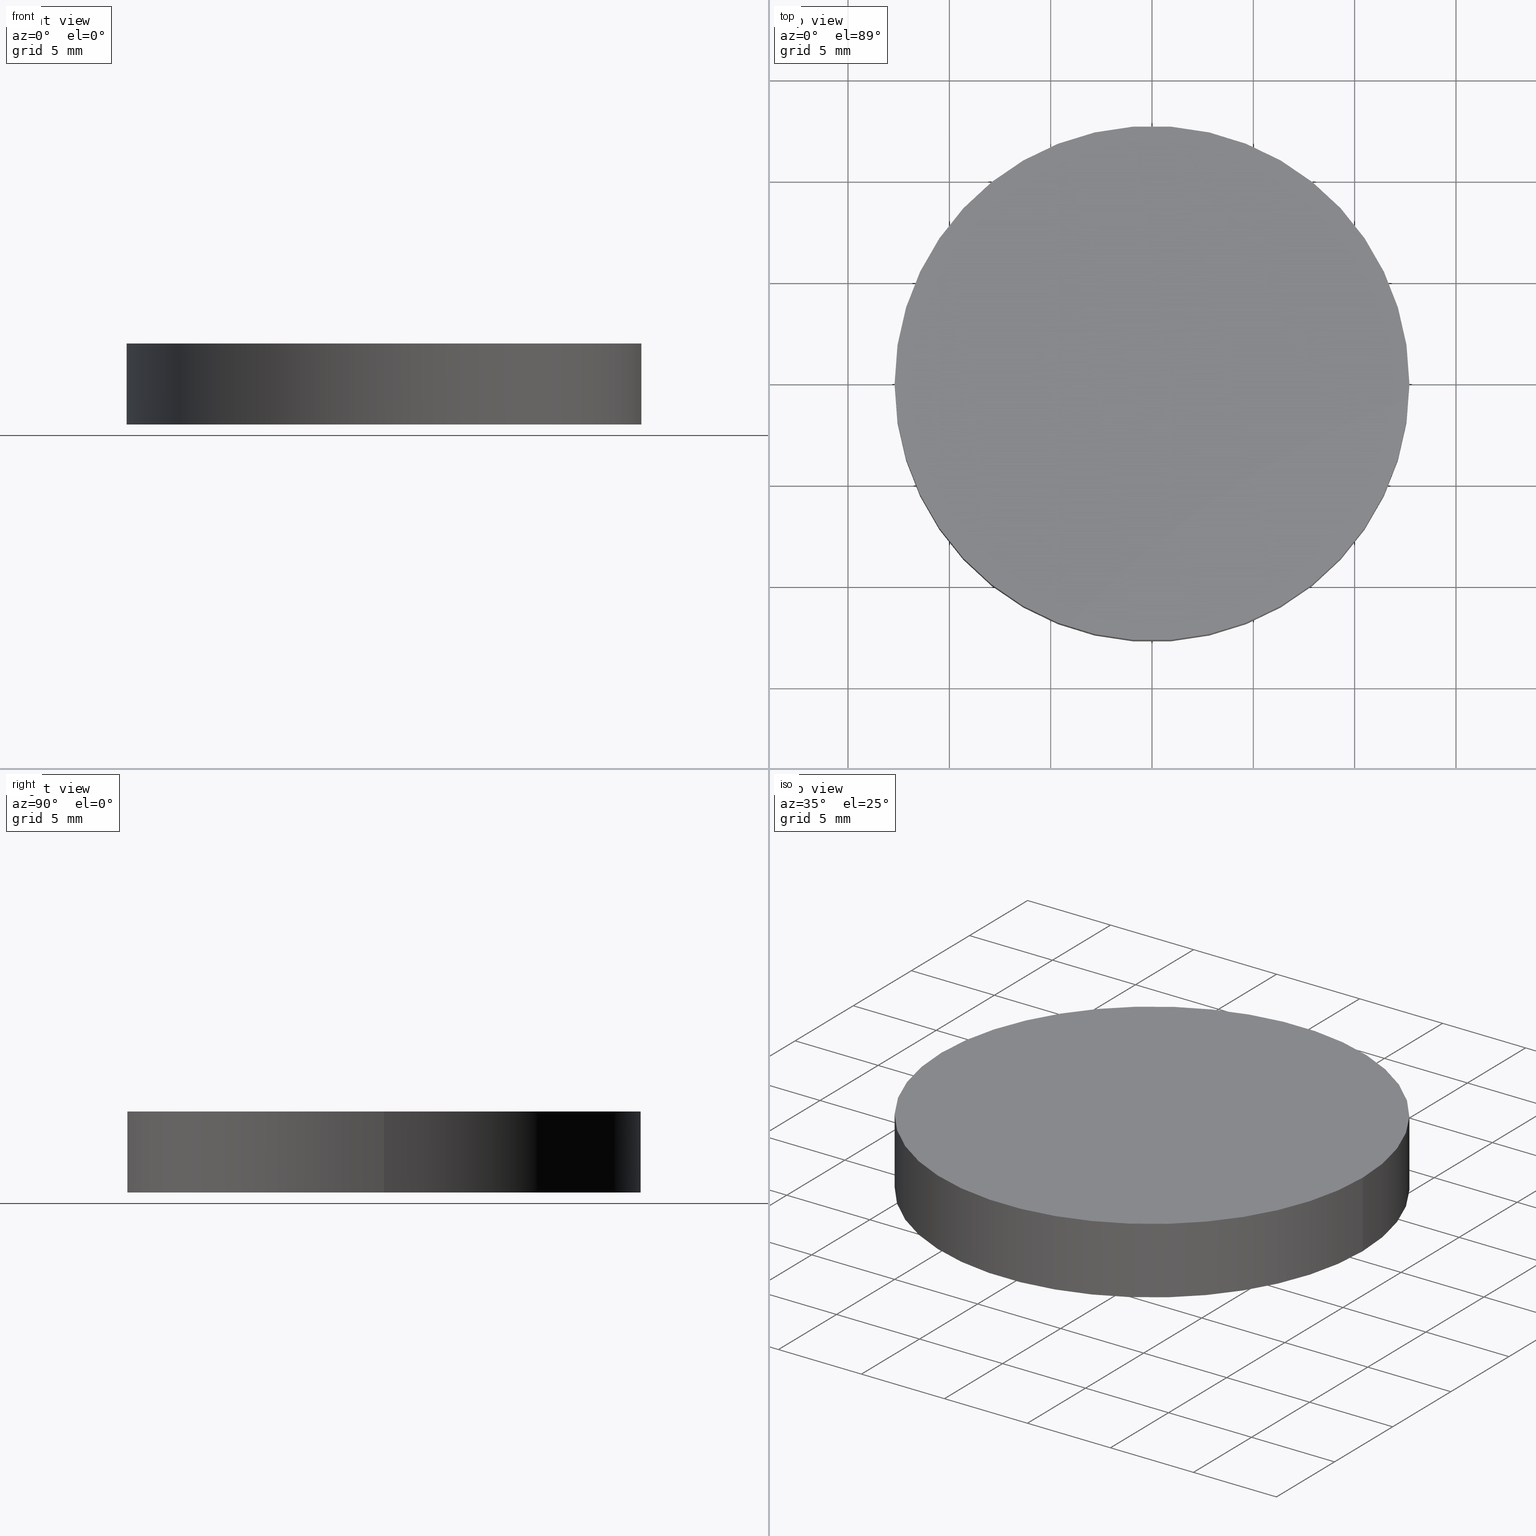
[diagram: canonical four-view strip — front | top / right | iso, engineering-drawing reading convention]
A machine part, canonical four-view strip (front | top / right | iso — engineering-drawing reading convention). The complete STEP part file that produces these views, byte-faithful:
ISO-10303-21;
HEADER;
FILE_DESCRIPTION (( 'STEP AP214' ),
    '1' );
FILE_NAME ('180006.STEP',
    '2019-07-09T05:37:44',
    ( 'user' ),
    ( '΢���й�' ),
    'SwSTEP 2.0',
    'SolidWorks 2016',
    '' );
FILE_SCHEMA (( 'AUTOMOTIVE_DESIGN' ));
ENDSEC;

DATA;
#1 = EDGE_CURVE ( 'NONE', #91, #73, #121, .T. ) ;
#2 = COLOUR_RGB ( '',1.000000000000000000, 1.000000000000000000, 1.000000000000000000 ) ;
#3 = PRESENTATION_LAYER_ASSIGNMENT (  '', '', ( #28 ) ) ;
#4 = VERTEX_POINT ( 'NONE', #97 ) ;
#5 = MECHANICAL_DESIGN_GEOMETRIC_PRESENTATION_REPRESENTATION (  '', ( #28 ), #14 ) ;
#6 = CARTESIAN_POINT ( 'NONE',  ( 0.0000000000000000000, 0.0000000000000000000, 0.0000000000000000000 ) ) ;
#7 = DIRECTION ( 'NONE',  ( 0.0000000000000000000, 0.0000000000000000000, 1.000000000000000000 ) ) ;
#8 = CARTESIAN_POINT ( 'NONE',  ( -12.69999999999999900, 0.0000000000000000000, 4.000000000000000000 ) ) ;
#9 =( LENGTH_UNIT ( ) NAMED_UNIT ( * ) SI_UNIT ( .MILLI., .METRE. ) );
#10 = EDGE_CURVE ( 'NONE', #4, #106, #130, .T. ) ;
#11 = ORIENTED_EDGE ( 'NONE', *, *, #10, .T. ) ;
#12 = EDGE_LOOP ( 'NONE', ( #133, #75 ) ) ;
#13 = FACE_OUTER_BOUND ( 'NONE', #60, .T. ) ;
#14 =( GEOMETRIC_REPRESENTATION_CONTEXT ( 3 ) GLOBAL_UNCERTAINTY_ASSIGNED_CONTEXT ( ( #37 ) ) GLOBAL_UNIT_ASSIGNED_CONTEXT ( ( #9, #94, #25 ) ) REPRESENTATION_CONTEXT ( 'NONE', 'WORKASPACE' ) );
#15 = ORIENTED_EDGE ( 'NONE', *, *, #16, .F. ) ;
#16 = EDGE_CURVE ( 'NONE', #73, #4, #107, .T. ) ;
#17 = VECTOR ( 'NONE', #57, 1000.000000000000000 ) ;
#18 = EDGE_CURVE ( 'NONE', #73, #91, #132, .T. ) ;
#19 =( GEOMETRIC_REPRESENTATION_CONTEXT ( 3 ) GLOBAL_UNCERTAINTY_ASSIGNED_CONTEXT ( ( #50 ) ) GLOBAL_UNIT_ASSIGNED_CONTEXT ( ( #40, #80, #113 ) ) REPRESENTATION_CONTEXT ( 'NONE', 'WORKASPACE' ) );
#20 = ORIENTED_EDGE ( 'NONE', *, *, #1, .F. ) ;
#21 = ORIENTED_EDGE ( 'NONE', *, *, #18, .F. ) ;
#22 = SURFACE_STYLE_FILL_AREA ( #69 ) ;
#23 =( NAMED_UNIT ( * ) SI_UNIT ( $, .STERADIAN. ) SOLID_ANGLE_UNIT ( ) );
#24 = CARTESIAN_POINT ( 'NONE',  ( 0.0000000000000000000, 0.0000000000000000000, 0.0000000000000000000 ) ) ;
#25 =( NAMED_UNIT ( * ) SI_UNIT ( $, .STERADIAN. ) SOLID_ANGLE_UNIT ( ) );
#26 = AXIS2_PLACEMENT_3D ( 'NONE', #6, #76, #134 ) ;
#27 = ORIENTED_EDGE ( 'NONE', *, *, #71, .T. ) ;
#28 = STYLED_ITEM ( 'NONE', ( #55 ), #84 ) ;
#29 = CIRCLE ( 'NONE', #52, 12.69999999999999900 ) ;
#30 = COLOUR_RGB ( '',1.000000000000000000, 1.000000000000000000, 1.000000000000000000 ) ;
#31 = FILL_AREA_STYLE ('',( #58 ) ) ;
#32 = DIRECTION ( 'NONE',  ( 1.000000000000000000, 0.0000000000000000000, 0.0000000000000000000 ) ) ;
#33 = APPLICATION_PROTOCOL_DEFINITION ( 'draft international standard', 'automotive_design', 1998, #62 ) ;
#34 = CARTESIAN_POINT ( 'NONE',  ( -12.69999999999999900, 0.0000000000000000000, 0.0000000000000000000 ) ) ;
#35 = DIRECTION ( 'NONE',  ( 0.0000000000000000000, 0.0000000000000000000, 1.000000000000000000 ) ) ;
#36 = AXIS2_PLACEMENT_3D ( 'NONE', #92, #68, #139 ) ;
#37 = UNCERTAINTY_MEASURE_WITH_UNIT (LENGTH_MEASURE( 1.000000000000000100E-005 ), #9, 'distance_accuracy_value', 'NONE');
#38 = AXIS2_PLACEMENT_3D ( 'NONE', #24, #35, #114 ) ;
#39 = ORIENTED_EDGE ( 'NONE', *, *, #105, .T. ) ;
#40 =( LENGTH_UNIT ( ) NAMED_UNIT ( * ) SI_UNIT ( .MILLI., .METRE. ) );
#41 = CARTESIAN_POINT ( 'NONE',  ( 12.69999999999999900, 1.555301434917138400E-015, 4.000000000000000000 ) ) ;
#42 = ADVANCED_FACE ( 'NONE', ( #13 ), #131, .T. ) ;
#43 = DIRECTION ( 'NONE',  ( -1.000000000000000000, 0.0000000000000000000, 0.0000000000000000000 ) ) ;
#44 = SHAPE_DEFINITION_REPRESENTATION ( #116, #84 ) ;
#45 = PRODUCT_DEFINITION_CONTEXT ( 'detailed design', #119, 'design' ) ;
#46 = CARTESIAN_POINT ( 'NONE',  ( 0.0000000000000000000, 0.0000000000000000000, 0.0000000000000000000 ) ) ;
#47 =( LENGTH_UNIT ( ) NAMED_UNIT ( * ) SI_UNIT ( .MILLI., .METRE. ) );
#48 = PRODUCT_CONTEXT ( 'NONE', #62, 'mechanical' ) ;
#49 = PRODUCT_DEFINITION ( 'δ֪', '', #56, #45 ) ;
#50 = UNCERTAINTY_MEASURE_WITH_UNIT (LENGTH_MEASURE( 1.000000000000000100E-005 ), #40, 'distance_accuracy_value', 'NONE');
#51 = SURFACE_STYLE_FILL_AREA ( #31 ) ;
#52 = AXIS2_PLACEMENT_3D ( 'NONE', #46, #118, #61 ) ;
#53 = CLOSED_SHELL ( 'NONE', ( #42, #89, #125, #135 ) ) ;
#54 = PRODUCT ( '180006', '180006', '', ( #48 ) ) ;
#55 = PRESENTATION_STYLE_ASSIGNMENT (( #85 ) ) ;
#56 = PRODUCT_DEFINITION_FORMATION_WITH_SPECIFIED_SOURCE ( '�κ�', '', #54, .NOT_KNOWN. ) ;
#57 = DIRECTION ( 'NONE',  ( -0.0000000000000000000, -0.0000000000000000000, -1.000000000000000000 ) ) ;
#58 = FILL_AREA_STYLE_COLOUR ( '', #30 ) ;
#59 = DIRECTION ( 'NONE',  ( -0.0000000000000000000, -0.0000000000000000000, -1.000000000000000000 ) ) ;
#60 = EDGE_LOOP ( 'NONE', ( #21, #77, #11, #88 ) ) ;
#61 = DIRECTION ( 'NONE',  ( 1.000000000000000000, 0.0000000000000000000, 0.0000000000000000000 ) ) ;
#62 = APPLICATION_CONTEXT ( 'automotive_design' ) ;
#63 = APPLICATION_PROTOCOL_DEFINITION ( 'draft international standard', 'automotive_design', 1998, #119 ) ;
#64 = ORIENTED_EDGE ( 'NONE', *, *, #1, .T. ) ;
#65 = PRODUCT_RELATED_PRODUCT_CATEGORY ( 'part', '', ( #54 ) ) ;
#66 = CARTESIAN_POINT ( 'NONE',  ( 12.69999999999999900, 1.555301434917138400E-015, 4.000000000000000000 ) ) ;
#67 = ORIENTED_EDGE ( 'NONE', *, *, #18, .T. ) ;
#68 = DIRECTION ( 'NONE',  ( 0.0000000000000000000, 0.0000000000000000000, 1.000000000000000000 ) ) ;
#69 = FILL_AREA_STYLE ('',( #129 ) ) ;
#70 = MANIFOLD_SOLID_BREP ( '͹̨-����1', #53 ) ;
#71 = EDGE_CURVE ( 'NONE', #91, #106, #72, .T. ) ;
#72 = LINE ( 'NONE', #96, #79 ) ;
#73 = VERTEX_POINT ( 'NONE', #41 ) ;
#74 = AXIS2_PLACEMENT_3D ( 'NONE', #99, #124, #43 ) ;
#75 = ORIENTED_EDGE ( 'NONE', *, *, #10, .F. ) ;
#76 = DIRECTION ( 'NONE',  ( 0.0000000000000000000, 0.0000000000000000000, 1.000000000000000000 ) ) ;
#77 = ORIENTED_EDGE ( 'NONE', *, *, #16, .T. ) ;
#78 = DIRECTION ( 'NONE',  ( 0.0000000000000000000, 0.0000000000000000000, 1.000000000000000000 ) ) ;
#79 = VECTOR ( 'NONE', #59, 1000.000000000000000 ) ;
#80 =( NAMED_UNIT ( * ) PLANE_ANGLE_UNIT ( ) SI_UNIT ( $, .RADIAN. ) );
#81 = PRESENTATION_LAYER_ASSIGNMENT (  '', '', ( #95 ) ) ;
#82 = DIRECTION ( 'NONE',  ( 0.0000000000000000000, 0.0000000000000000000, 1.000000000000000000 ) ) ;
#83 = CARTESIAN_POINT ( 'NONE',  ( 0.0000000000000000000, 0.0000000000000000000, 0.0000000000000000000 ) ) ;
#84 = ADVANCED_BREP_SHAPE_REPRESENTATION ( '180006', ( #70, #38 ), #110 ) ;
#85 = SURFACE_STYLE_USAGE ( .BOTH. , #140 ) ;
#86 = FACE_OUTER_BOUND ( 'NONE', #101, .T. ) ;
#87 = AXIS2_PLACEMENT_3D ( 'NONE', #126, #7, #111 ) ;
#88 = ORIENTED_EDGE ( 'NONE', *, *, #71, .F. ) ;
#89 = ADVANCED_FACE ( 'NONE', ( #86 ), #104, .T. ) ;
#90 =( NAMED_UNIT ( * ) PLANE_ANGLE_UNIT ( ) SI_UNIT ( $, .RADIAN. ) );
#91 = VERTEX_POINT ( 'NONE', #8 ) ;
#92 = CARTESIAN_POINT ( 'NONE',  ( 0.0000000000000000000, 0.0000000000000000000, 4.000000000000000000 ) ) ;
#93 = PLANE ( 'NONE',  #123 ) ;
#94 =( NAMED_UNIT ( * ) PLANE_ANGLE_UNIT ( ) SI_UNIT ( $, .RADIAN. ) );
#95 = STYLED_ITEM ( 'NONE', ( #137 ), #70 ) ;
#96 = CARTESIAN_POINT ( 'NONE',  ( -12.69999999999999900, 0.0000000000000000000, 4.000000000000000000 ) ) ;
#97 = CARTESIAN_POINT ( 'NONE',  ( 12.69999999999999900, 1.555301434917138400E-015, 0.0000000000000000000 ) ) ;
#98 = UNCERTAINTY_MEASURE_WITH_UNIT (LENGTH_MEASURE( 1.000000000000000100E-005 ), #47, 'distance_accuracy_value', 'NONE');
#99 = CARTESIAN_POINT ( 'NONE',  ( 0.0000000000000000000, 0.0000000000000000000, 4.000000000000000000 ) ) ;
#100 = CARTESIAN_POINT ( 'NONE',  ( 0.0000000000000000000, 0.0000000000000000000, 4.000000000000000000 ) ) ;
#101 = EDGE_LOOP ( 'NONE', ( #15, #20, #27, #39 ) ) ;
#102 = DIRECTION ( 'NONE',  ( 1.000000000000000000, 0.0000000000000000000, -0.0000000000000000000 ) ) ;
#103 = EDGE_LOOP ( 'NONE', ( #64, #67 ) ) ;
#104 = CYLINDRICAL_SURFACE ( 'NONE', #120, 12.69999999999999900 ) ;
#105 = EDGE_CURVE ( 'NONE', #106, #4, #29, .T. ) ;
#106 = VERTEX_POINT ( 'NONE', #34 ) ;
#107 = LINE ( 'NONE', #66, #17 ) ;
#108 = FACE_OUTER_BOUND ( 'NONE', #103, .T. ) ;
#109 = AXIS2_PLACEMENT_3D ( 'NONE', #100, #78, #32 ) ;
#110 =( GEOMETRIC_REPRESENTATION_CONTEXT ( 3 ) GLOBAL_UNCERTAINTY_ASSIGNED_CONTEXT ( ( #98 ) ) GLOBAL_UNIT_ASSIGNED_CONTEXT ( ( #47, #90, #23 ) ) REPRESENTATION_CONTEXT ( 'NONE', 'WORKASPACE' ) );
#111 = DIRECTION ( 'NONE',  ( 1.000000000000000000, 0.0000000000000000000, 0.0000000000000000000 ) ) ;
#112 = MECHANICAL_DESIGN_GEOMETRIC_PRESENTATION_REPRESENTATION (  '', ( #95 ), #19 ) ;
#113 =( NAMED_UNIT ( * ) SI_UNIT ( $, .STERADIAN. ) SOLID_ANGLE_UNIT ( ) );
#114 = DIRECTION ( 'NONE',  ( 1.000000000000000000, 0.0000000000000000000, 0.0000000000000000000 ) ) ;
#115 = DIRECTION ( 'NONE',  ( -0.0000000000000000000, -0.0000000000000000000, -1.000000000000000000 ) ) ;
#116 = PRODUCT_DEFINITION_SHAPE ( 'NONE', 'NONE',  #49 ) ;
#117 = SURFACE_SIDE_STYLE ('',( #51 ) ) ;
#118 = DIRECTION ( 'NONE',  ( 0.0000000000000000000, 0.0000000000000000000, 1.000000000000000000 ) ) ;
#119 = APPLICATION_CONTEXT ( 'automotive_design' ) ;
#120 = AXIS2_PLACEMENT_3D ( 'NONE', #127, #115, #138 ) ;
#121 = CIRCLE ( 'NONE', #109, 12.69999999999999900 ) ;
#122 = FACE_OUTER_BOUND ( 'NONE', #12, .T. ) ;
#123 = AXIS2_PLACEMENT_3D ( 'NONE', #83, #82, #102 ) ;
#124 = DIRECTION ( 'NONE',  ( -0.0000000000000000000, -0.0000000000000000000, -1.000000000000000000 ) ) ;
#125 = ADVANCED_FACE ( 'NONE', ( #108 ), #128, .T. ) ;
#126 = CARTESIAN_POINT ( 'NONE',  ( 0.0000000000000000000, 0.0000000000000000000, 4.000000000000000000 ) ) ;
#127 = CARTESIAN_POINT ( 'NONE',  ( 0.0000000000000000000, 0.0000000000000000000, 4.000000000000000000 ) ) ;
#128 = PLANE ( 'NONE',  #36 ) ;
#129 = FILL_AREA_STYLE_COLOUR ( '', #2 ) ;
#130 = CIRCLE ( 'NONE', #26, 12.69999999999999900 ) ;
#131 = CYLINDRICAL_SURFACE ( 'NONE', #74, 12.69999999999999900 ) ;
#132 = CIRCLE ( 'NONE', #87, 12.69999999999999900 ) ;
#133 = ORIENTED_EDGE ( 'NONE', *, *, #105, .F. ) ;
#134 = DIRECTION ( 'NONE',  ( 1.000000000000000000, 0.0000000000000000000, 0.0000000000000000000 ) ) ;
#135 = ADVANCED_FACE ( 'NONE', ( #122 ), #93, .F. ) ;
#136 = SURFACE_STYLE_USAGE ( .BOTH. , #117 ) ;
#137 = PRESENTATION_STYLE_ASSIGNMENT (( #136 ) ) ;
#138 = DIRECTION ( 'NONE',  ( -1.000000000000000000, 0.0000000000000000000, 0.0000000000000000000 ) ) ;
#139 = DIRECTION ( 'NONE',  ( 1.000000000000000000, 0.0000000000000000000, -0.0000000000000000000 ) ) ;
#140 = SURFACE_SIDE_STYLE ('',( #22 ) ) ;
ENDSEC;
END-ISO-10303-21;
